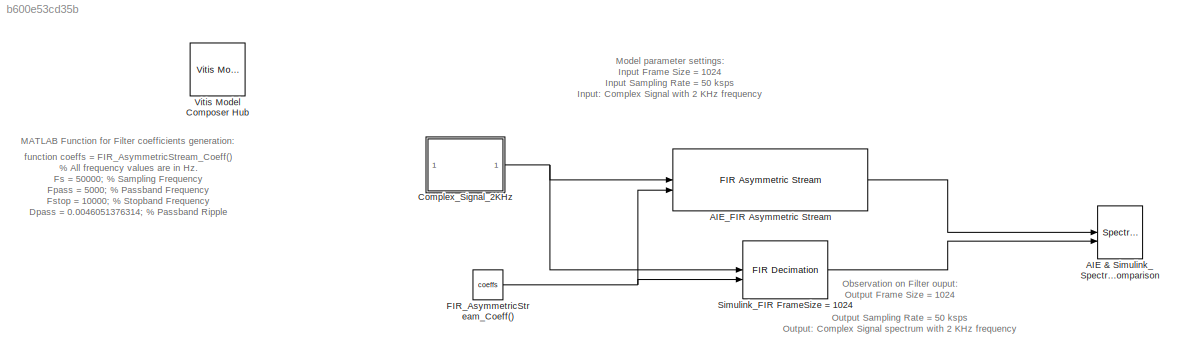
MODEL slx_b600e53cd35b
KIND model
CONFIG AbsTol = auto
CONFIG EnableMultiTasking = off
CONFIG FixedStep = auto
CONFIG MaxStep = auto
CONFIG MinStep = auto
CONFIG PostLoadFcn = % All frequency values are in Hz.\nFs = 50000;  % Sampling Frequency\nFpass = 5000;              % Passband Frequency\nFstop = 10000;             % Stopband Frequency\nDpass = 0.0046051376314;   % Passband Ripple\nDstop = 0.00025118864315;  % Stopband Attenuation\ndens  = 16;                % Density Factor\n% Calculate the order from the parameters using FIRPMORD.\n[N, Fo, Ao, W] = firpmord([Fpass, Fstop...<+126ch>
CONFIG RelTol = 1e-3
CONFIG SampleTimeConstraint = Unconstrained
CONFIG SolverName = VariableStepAuto
CONFIG StartTime = 0.0
CONFIG StopTime = 1
BLOCK [SpectrumAnalyzer] AIE & Simulink_Spectrum_Comparison
  AllowFFTLengthLessThanSamplesPerUpdate = on
  AveragingMethod = Exponential
  ChannelNames = [""]
  DefaultConfigurationName = spbscopes.SpectrumAnalyzerBlockCfg
  GraphicalSettings = {"GraphicalSettings":{"Style":{"DefaultMarker":"none","Line":"1","Measurements":"struct","OnceAtStop":"false","Visible":"off","traceselector":"struct","FontSize":"small"}}}
  NumInputPorts = 2
  ScopeSpecificationString = spbscopes.SpectrumAnalyzerBlockCfg('CurrentConfiguration', extmgr.ConfigurationSet(extmgr.Configuration('Core','General UI',true,'FigureColor',[0.16        0.16        0.16]),extmgr.Configuration('Visuals','Spectrum',true,'Title','','YLabel','','MinYLim','-80','MaxYLim','20','Legend',true,'InputDomain','Time','SpectrumType','Power','ViewType','Spectrum','SampleRateSource','Inherited','SampleRate',...<+1270ch>
  ShowLegend = on
  WasSavedAsWebScope = on
  WindowPosition = []
BLOCK [Reference] AIE_FIR Asymmetric Stream  REF=aieDSP/FIR Asymmetric Stream
  SourceBlock = aieDSP/FIR Asymmetric Stream
  SourceType = FIR Asymmetric Stream
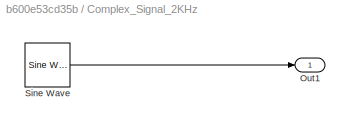
BLOCK [SubSystem] Complex_Signal_2KHz
BLOCK [Outport] Complex_Signal_2KHz/Out1
BLOCK [Reference] Complex_Signal_2KHz/Sine Wave  REF=dspsrcs4/Sine Wave
  SourceBlock = dspsrcs4/Sine Wave
  SourceType = Sine Wave
BLOCK [Constant] FIR_AsymmetricStream_Coeff()
  OutDataTypeStr = single
  Value = coeffs
BLOCK [Reference] Simulink_FIR FrameSize = 1024  REF=dspmlti4/FIR
Decimation
  SourceBlock = dspmlti4/FIR\nDecimation
  SourceType = FIR Decimation
  UserDataPersistent = on
BLOCK [Reference] Vitis Model Composer Hub  REF=vmcUtilities/Vitis Model Composer Hub
  SourceBlock = vmcUtilities/Vitis Model Composer Hub
  SourceType = VMC Hub
  Tag = genX
  UserDataPersistent = on
ANNOTATION (root): function coeffs = FIR_AsymmetricStream_Coeff() % All frequency values are in Hz. Fs = 50000; % Sampling Frequency Fpass = 5000; % Passband Frequency Fstop = 10000; % Stopband Frequency Dpass = 0.0046051376314; % Passband Ripple Dstop = 0.00025118864315; % Stopband Attenuation dens = 16; % Density Factor % Calculate the order from the parameters using FIRPMORD. [N, Fo, Ao, W] = firpmord([Fpass, Fst...<+132ch>
ANNOTATION (root): MATLAB Function for Filter coefficients generation:
ANNOTATION (root): Model parameter settings: Input Frame Size = 1024 Input Sampling Rate = 50 ksps Input: Complex Signal with 2 KHz frequency
ANNOTATION (root): Observation on Filter ouput: Output Frame Size = 1024 Output Sampling Rate = 50 ksps Output: Complex Signal spectrum with 2 KHz frequency
LINE AIE_FIR Asymmetric Stream:1 -> AIE & Simulink_Spectrum_Comparison:1
LINE Complex_Signal_2KHz/Sine Wave:1 -> Complex_Signal_2KHz/Out1:1
NET Complex_Signal_2KHz:1 -> AIE_FIR Asymmetric Stream:1, Simulink_FIR FrameSize = 1024:1
NET FIR_AsymmetricStream_Coeff():1 -> AIE_FIR Asymmetric Stream:2, Simulink_FIR FrameSize = 1024:2
LINE Simulink_FIR FrameSize = 1024:1 -> AIE & Simulink_Spectrum_Comparison:2
note: NET lines group one-source signal fan-out (src -> all destinations, sorted); 1:1 wires keep LINE
